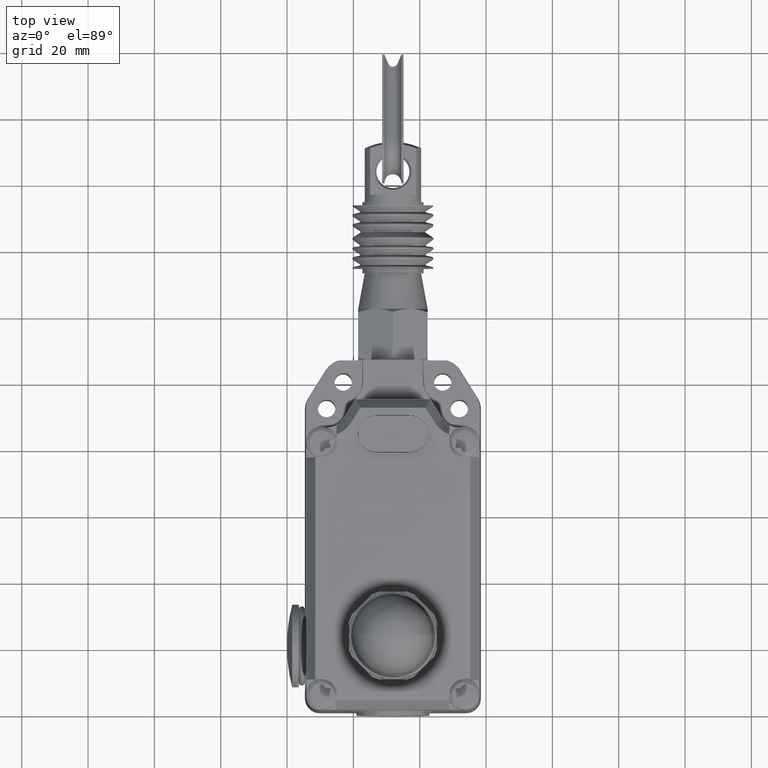
[diagram: clean part render]
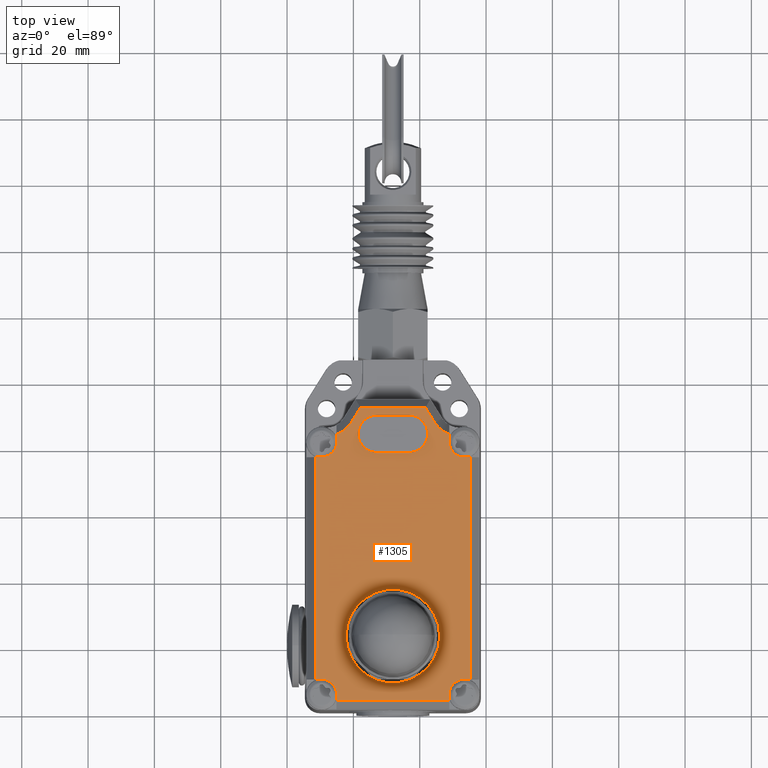
[diagram: same view with one face highlighted and labeled with its STEP entity id]
A machine part, top view. The second image highlights one B-rep face of the part: STEP entity #1305.
In plain terms, the highlighted planar face has unit normal (0, 0, 1).
Its self-contained STEP definition (entity closure, byte-faithful):
#1305=ADVANCED_FACE('',(#2836,#2837,#2838),#2839,.T.);
#2836=FACE_OUTER_BOUND('',#4613,.T.);
#2837=FACE_BOUND('',#4614,.T.);
#2838=FACE_BOUND('',#4615,.T.);
#2839=PLANE('',#4616);
#4613=EDGE_LOOP('',(#8334,#8335,#8336,#8337,#8338,#8339,#8340,#8341,#8342,#8343,#8344,#8345,#8346,#8347,#8348,#8349,#8350,#8351,#8352,#8353));
#4614=EDGE_LOOP('',(#8354,#8355,#8356,#8357));
#4615=EDGE_LOOP('',(#8358,#8359));
#4616=AXIS2_PLACEMENT_3D('',#8360,#8361,#8362);
#8334=ORIENTED_EDGE('',*,*,#11259,.T.);
#8335=ORIENTED_EDGE('',*,*,#11792,.T.);
#8336=ORIENTED_EDGE('',*,*,#11793,.T.);
#8337=ORIENTED_EDGE('',*,*,#11794,.F.);
#8338=ORIENTED_EDGE('',*,*,#11384,.T.);
#8339=ORIENTED_EDGE('',*,*,#11795,.T.);
#8340=ORIENTED_EDGE('',*,*,#11796,.T.);
#8341=ORIENTED_EDGE('',*,*,#11797,.F.);
#8342=ORIENTED_EDGE('',*,*,#11798,.F.);
#8343=ORIENTED_EDGE('',*,*,#11799,.F.);
#8344=ORIENTED_EDGE('',*,*,#11800,.F.);
#8345=ORIENTED_EDGE('',*,*,#11801,.F.);
#8346=ORIENTED_EDGE('',*,*,#11652,.T.);
#8347=ORIENTED_EDGE('',*,*,#11802,.T.);
#8348=ORIENTED_EDGE('',*,*,#11803,.T.);
#8349=ORIENTED_EDGE('',*,*,#11804,.F.);
#8350=ORIENTED_EDGE('',*,*,#11517,.T.);
#8351=ORIENTED_EDGE('',*,*,#11521,.T.);
#8352=ORIENTED_EDGE('',*,*,#11805,.T.);
#8353=ORIENTED_EDGE('',*,*,#11806,.F.);
#8354=ORIENTED_EDGE('',*,*,#11807,.T.);
#8355=ORIENTED_EDGE('',*,*,#11808,.T.);
#8356=ORIENTED_EDGE('',*,*,#11809,.T.);
#8357=ORIENTED_EDGE('',*,*,#11810,.T.);
#8358=ORIENTED_EDGE('',*,*,#11784,.T.);
#8359=ORIENTED_EDGE('',*,*,#10963,.T.);
#8360=CARTESIAN_POINT('',(31.9104298116984,46.3287617287663,43.0));
#8361=DIRECTION('',(0.0,0.0,1.0));
#8362=DIRECTION('',(0.0,-1.0,0.0));
#10963=EDGE_CURVE('',#13202,#13199,#13203,.T.);
#11259=EDGE_CURVE('',#13666,#13664,#13667,.T.);
#11384=EDGE_CURVE('',#13844,#13842,#13845,.T.);
#11517=EDGE_CURVE('',#14036,#14034,#14037,.T.);
#11521=EDGE_CURVE('',#14034,#14040,#14042,.T.);
#11652=EDGE_CURVE('',#14231,#14229,#14232,.T.);
#11784=EDGE_CURVE('',#13199,#13202,#14418,.T.);
#11792=EDGE_CURVE('',#13664,#14426,#14427,.T.);
#11793=EDGE_CURVE('',#14426,#14428,#14429,.T.);
#11794=EDGE_CURVE('',#13844,#14428,#14430,.T.);
#11795=EDGE_CURVE('',#13842,#14431,#14432,.T.);
#11796=EDGE_CURVE('',#14431,#14433,#14434,.T.);
#11797=EDGE_CURVE('',#14435,#14433,#14436,.T.);
#11798=EDGE_CURVE('',#14437,#14435,#14438,.T.);
#11799=EDGE_CURVE('',#14439,#14437,#14440,.T.);
#11800=EDGE_CURVE('',#14441,#14439,#14442,.T.);
#11801=EDGE_CURVE('',#14231,#14441,#14443,.T.);
#11802=EDGE_CURVE('',#14229,#14444,#14445,.T.);
#11803=EDGE_CURVE('',#14444,#14446,#14447,.T.);
#11804=EDGE_CURVE('',#14036,#14446,#14448,.T.);
#11805=EDGE_CURVE('',#14040,#14449,#14450,.T.);
#11806=EDGE_CURVE('',#13666,#14449,#14451,.T.);
#11807=EDGE_CURVE('',#14452,#14453,#14454,.T.);
#11808=EDGE_CURVE('',#14453,#14455,#14456,.T.);
#11809=EDGE_CURVE('',#14455,#14457,#14458,.T.);
#11810=EDGE_CURVE('',#14457,#14452,#14459,.T.);
#13199=VERTEX_POINT('',#16416);
#13202=VERTEX_POINT('',#16420);
#13203=CIRCLE('',#16421,14.1);
#13664=VERTEX_POINT('',#17097);
#13666=VERTEX_POINT('',#17100);
#13667=LINE('',#17101,#17102);
#13842=VERTEX_POINT('',#17350);
#13844=VERTEX_POINT('',#17353);
#13845=LINE('',#17354,#17355);
#14034=VERTEX_POINT('',#17635);
#14036=VERTEX_POINT('',#17638);
#14037=LINE('',#17639,#17640);
#14040=VERTEX_POINT('',#17644);
#14042=CIRCLE('',#17647,4.50000000009998);
#14229=VERTEX_POINT('',#17915);
#14231=VERTEX_POINT('',#17918);
#14232=LINE('',#17919,#17920);
#14418=CIRCLE('',#18188,14.1);
#14426=VERTEX_POINT('',#18196);
#14427=CIRCLE('',#18197,4.50000000010002);
#14428=VERTEX_POINT('',#18198);
#14429=LINE('',#18199,#18200);
#14430=LINE('',#18201,#18202);
#14431=VERTEX_POINT('',#18203);
#14432=CIRCLE('',#18204,4.50000000009998);
#14433=VERTEX_POINT('',#18205);
#14434=LINE('',#18206,#18207);
#14435=VERTEX_POINT('',#18208);
#14436=CIRCLE('',#18209,8.59807621175331);
#14437=VERTEX_POINT('',#18210);
#14438=LINE('',#18211,#18212);
#14439=VERTEX_POINT('',#18213);
#14440=LINE('',#18214,#18215);
#14441=VERTEX_POINT('',#18216);
#14442=LINE('',#18217,#18218);
#14443=CIRCLE('',#18219,8.59807621135331);
#14444=VERTEX_POINT('',#18220);
#14445=CIRCLE('',#18221,4.50000000009999);
#14446=VERTEX_POINT('',#18222);
#14447=LINE('',#18223,#18224);
#14448=LINE('',#18225,#18226);
#14449=VERTEX_POINT('',#18227);
#14450=LINE('',#18228,#18229);
#14451=LINE('',#18230,#18231);
#14452=VERTEX_POINT('',#18232);
#14453=VERTEX_POINT('',#18233);
#14454=LINE('',#18234,#18235);
#14455=VERTEX_POINT('',#18236);
#14456=CIRCLE('',#18237,5.61);
#14457=VERTEX_POINT('',#18238);
#14458=LINE('',#18239,#18240);
#14459=CIRCLE('',#18241,5.61);
#16416=CARTESIAN_POINT('',(17.8104298117,23.54,43.0));
#16420=CARTESIAN_POINT('',(46.0104298117,23.54,43.0));
#16421=AXIS2_PLACEMENT_3D('',#20588,#20589,#20590);
#17097=CARTESIAN_POINT('',(48.9104298117,6.04000000003401,43.0));
#17100=CARTESIAN_POINT('',(48.9104298117,4.13807621135301,43.0));
#17101=CARTESIAN_POINT('',(48.9104298117,22.4241041111915,43.0));
#17102=VECTOR('',#21039,1.0);
#17350=CARTESIAN_POINT('',(53.4104298116665,77.54,43.0));
#17353=CARTESIAN_POINT('',(55.3123536003467,77.54,43.0));
#17354=CARTESIAN_POINT('',(45.2854298116908,77.54,43.0));
#17355=VECTOR('',#21194,1.0);
#17635=CARTESIAN_POINT('',(10.4104298117335,10.54,43.0));
#17638=CARTESIAN_POINT('',(8.5085060230533,10.54,43.0));
#17639=CARTESIAN_POINT('',(17.2854298117076,10.54,43.0));
#17640=VECTOR('',#21353,1.0);
#17644=CARTESIAN_POINT('',(14.9104298117,6.04000000003401,43.0));
#17647=AXIS2_PLACEMENT_3D('',#21356,#21357,#21358);
#17915=CARTESIAN_POINT('',(14.9104298117,82.0399999999665,43.0));
#17918=CARTESIAN_POINT('',(14.9104298117,84.4033496666068,43.0));
#17919=CARTESIAN_POINT('',(14.9104298117,70.4343808643748,43.0));
#17920=VECTOR('',#21519,1.0);
#18188=AXIS2_PLACEMENT_3D('',#21647,#21648,#21649);
#18196=CARTESIAN_POINT('',(53.4104298117,10.54,43.0));
#18197=AXIS2_PLACEMENT_3D('',#21656,#21657,#21658);
#18198=CARTESIAN_POINT('',(55.3123536003467,10.54,43.0));
#18199=CARTESIAN_POINT('',(46.5354298116992,10.54,43.0));
#18200=VECTOR('',#21659,1.0);
#18201=CARTESIAN_POINT('',(55.3123536003467,81.9912319126,43.0));
#18202=VECTOR('',#21660,1.0);
#18203=CARTESIAN_POINT('',(48.9104298117,82.04,43.0));
#18204=AXIS2_PLACEMENT_3D('',#21661,#21662,#21663);
#18205=CARTESIAN_POINT('',(48.9104298117,84.4033496666537,43.0));
#18206=CARTESIAN_POINT('',(48.9104298117,70.4343808643831,43.0));
#18207=VECTOR('',#21664,1.0);
#18208=CARTESIAN_POINT('',(44.5365651332079,87.9349456927376,43.0));
#18209=AXIS2_PLACEMENT_3D('',#21665,#21666,#21667);
#18210=CARTESIAN_POINT('',(41.720292651388,92.4419237886467,43.0));
#18211=CARTESIAN_POINT('',(40.9571362269968,93.663229365651,43.0));
#18212=VECTOR('',#21668,1.0);
#18213=CARTESIAN_POINT('',(22.1005669720501,92.4419237886467,43.0));
#18214=CARTESIAN_POINT('',(20.6604298117,92.4419237886467,43.0));
#18215=VECTOR('',#21669,1.0);
#18216=CARTESIAN_POINT('',(19.2842944902088,87.93494569286,43.0));
#18217=CARTESIAN_POINT('',(19.2842944902032,87.934945692851,43.0));
#18218=VECTOR('',#21670,1.0);
#18219=AXIS2_PLACEMENT_3D('',#21671,#21672,#21673);
#18220=CARTESIAN_POINT('',(10.4104298117,77.54,43.0));
#18221=AXIS2_PLACEMENT_3D('',#21674,#21675,#21676);
#18222=CARTESIAN_POINT('',(8.5085060230533,77.54,43.0));
#18223=CARTESIAN_POINT('',(18.5354298116992,77.54,43.0));
#18224=VECTOR('',#21677,1.0);
#18225=CARTESIAN_POINT('',(8.5085060230533,6.04000000000001,43.0));
#18226=VECTOR('',#21678,1.0);
#18227=CARTESIAN_POINT('',(14.9104298117,4.13807621135301,43.0));
#18228=CARTESIAN_POINT('',(14.9104298117,22.4241041111915,43.0));
#18229=VECTOR('',#21679,1.0);
#18230=CARTESIAN_POINT('',(53.4104298117,4.13807621135301,43.0));
#18231=VECTOR('',#21680,1.0);
#18232=CARTESIAN_POINT('',(27.0004298117,90.15,43.0));
#18233=CARTESIAN_POINT('',(36.8204298117,90.15,43.0));
#18234=CARTESIAN_POINT('',(31.9104298116992,90.15,43.0));
#18235=VECTOR('',#21681,1.0);
#18236=CARTESIAN_POINT('',(36.8204298117,78.93,43.0));
#18237=AXIS2_PLACEMENT_3D('',#21682,#21683,#21684);
#18238=CARTESIAN_POINT('',(27.0004298117,78.93,43.0));
#18239=CARTESIAN_POINT('',(31.9104298116992,78.93,43.0));
#18240=VECTOR('',#21685,1.0);
#18241=AXIS2_PLACEMENT_3D('',#21686,#21687,#21688);
#20588=CARTESIAN_POINT('',(31.9104298117,23.54,43.0));
#20589=DIRECTION('',(0.0,0.0,-1.0));
#20590=DIRECTION('',(-1.0,0.0,0.0));
#21039=DIRECTION('',(0.0,1.0,0.0));
#21194=DIRECTION('',(-1.0,-0.0,0.0));
#21353=DIRECTION('',(1.0,0.0,0.0));
#21356=CARTESIAN_POINT('',(10.4104298116,6.0399999999,43.0));
#21357=DIRECTION('',(0.0,0.0,-1.0));
#21358=DIRECTION('',(1.0,2.96627907415393E-011,0.0));
#21519=DIRECTION('',(0.0,-1.0,0.0));
#21647=CARTESIAN_POINT('',(31.9104298117,23.54,43.0));
#21648=DIRECTION('',(0.0,0.0,-1.0));
#21649=DIRECTION('',(-1.0,0.0,0.0));
#21656=CARTESIAN_POINT('',(53.4104298118,6.0399999999,43.0));
#21657=DIRECTION('',(0.0,0.0,-1.0));
#21658=DIRECTION('',(-2.96746331204681E-011,1.0,0.0));
#21659=DIRECTION('',(1.0,0.0,0.0));
#21660=DIRECTION('',(0.0,-1.0,0.0));
#21661=CARTESIAN_POINT('',(53.4104298118,82.0400000001,43.0));
#21662=DIRECTION('',(-0.0,0.0,-1.0));
#21663=DIRECTION('',(-1.0,-2.96659487092537E-011,0.0));
#21664=DIRECTION('',(0.0,1.0,0.0));
#21665=CARTESIAN_POINT('',(51.828147295,92.491231913,43.0));
#21666=DIRECTION('',(0.0,0.0,1.0));
#21667=DIRECTION('',(-0.848048096138853,-0.529919264261328,0.0));
#21668=DIRECTION('',(0.529919264235833,-0.848048096154784,0.0));
#21669=DIRECTION('',(1.0,0.0,0.0));
#21670=DIRECTION('',(0.529919264235833,0.848048096154784,0.0));
#21671=CARTESIAN_POINT('',(11.9927123286,92.4912319126,43.0));
#21672=DIRECTION('',(0.0,0.0,1.0));
#21673=DIRECTION('',(8.72428055724112E-012,-1.0,0.0));
#21674=CARTESIAN_POINT('',(10.4104298116,82.0400000001,43.0));
#21675=DIRECTION('',(0.0,0.0,-1.0));
#21676=DIRECTION('',(2.9669106676968E-011,-1.0,0.0));
#21677=DIRECTION('',(-1.0,-0.0,0.0));
#21678=DIRECTION('',(0.0,1.0,0.0));
#21679=DIRECTION('',(0.0,-1.0,0.0));
#21680=DIRECTION('',(-1.0,0.0,0.0));
#21681=DIRECTION('',(1.0,0.0,0.0));
#21682=CARTESIAN_POINT('',(36.8204298117,84.54,43.0));
#21683=DIRECTION('',(-0.0,0.0,-1.0));
#21684=DIRECTION('',(-3.16641147843182E-016,-1.0,0.0));
#21685=DIRECTION('',(-1.0,-0.0,0.0));
#21686=CARTESIAN_POINT('',(27.0004298117,84.54,43.0));
#21687=DIRECTION('',(0.0,0.0,-1.0));
#21688=DIRECTION('',(0.0,1.0,0.0));